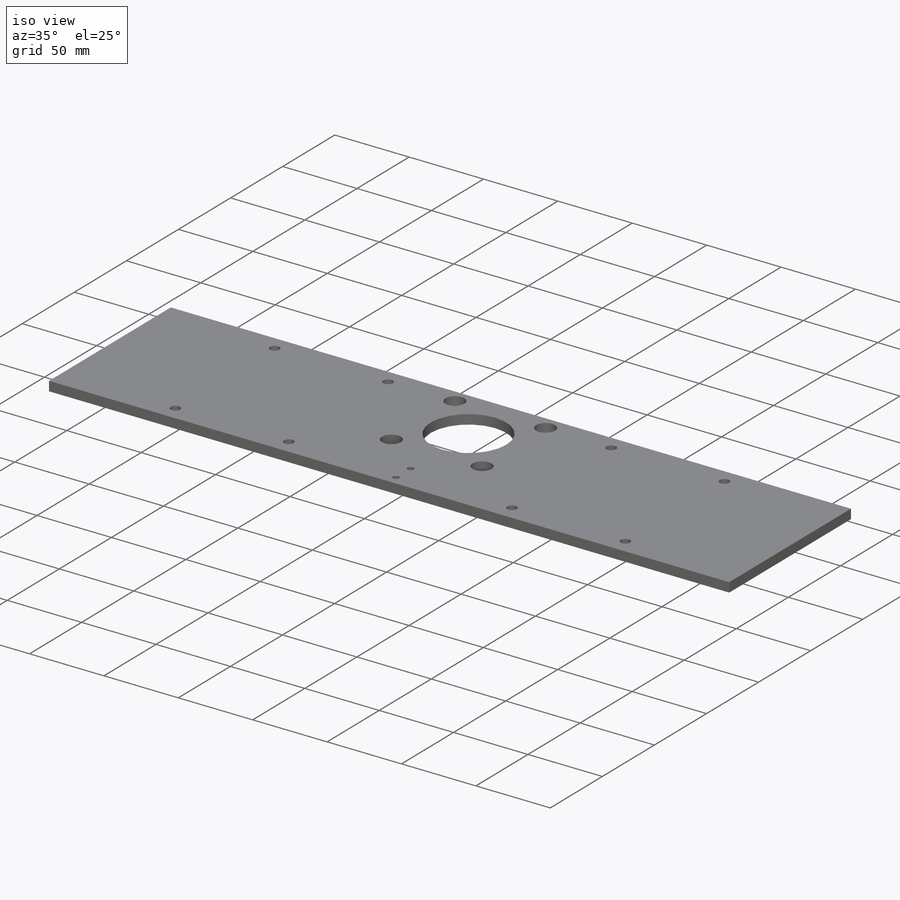
[diagram: iso view]
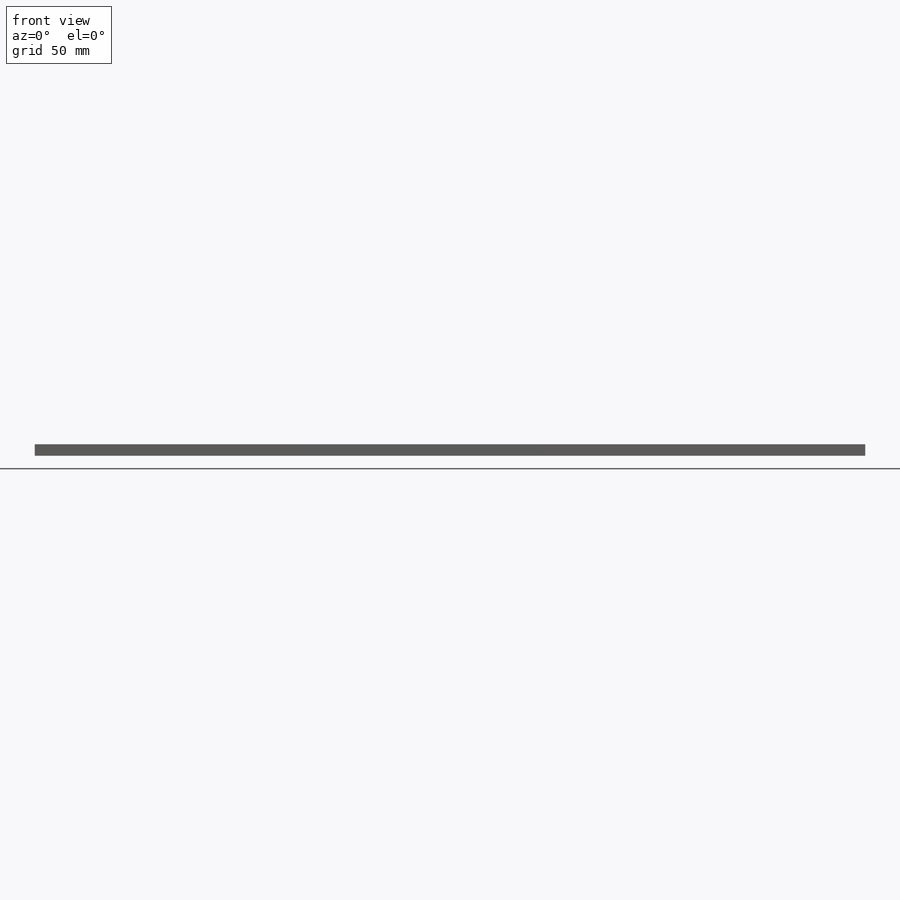
[diagram: front view]
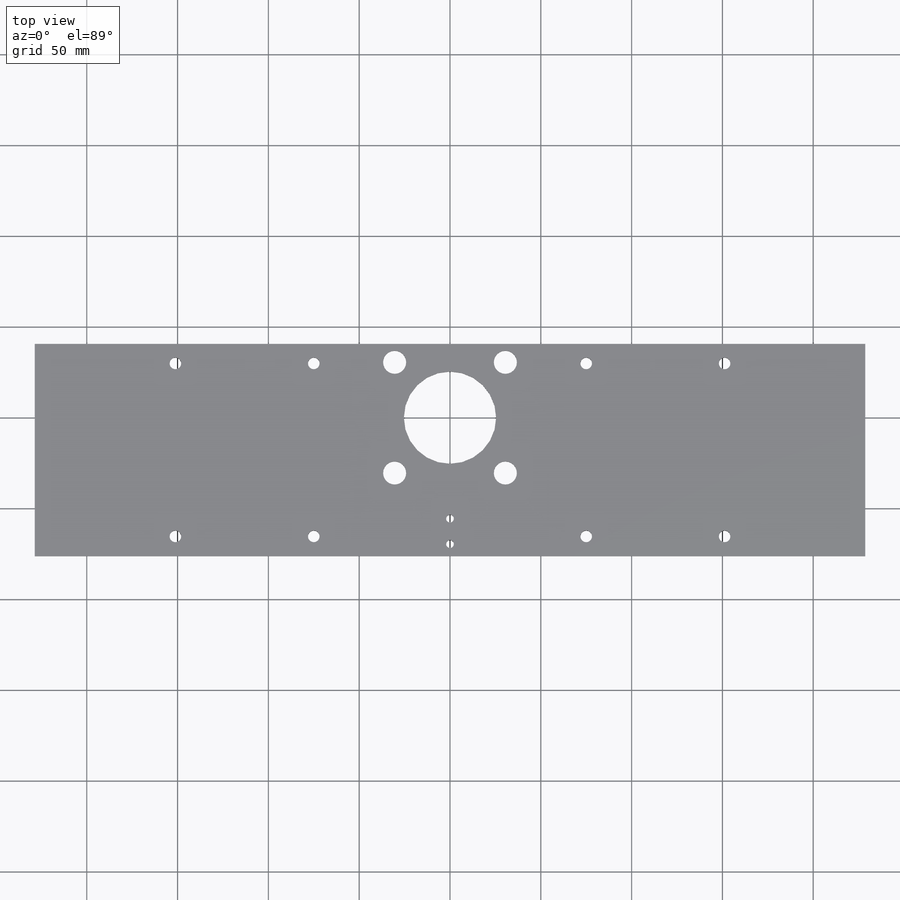
[diagram: top view]
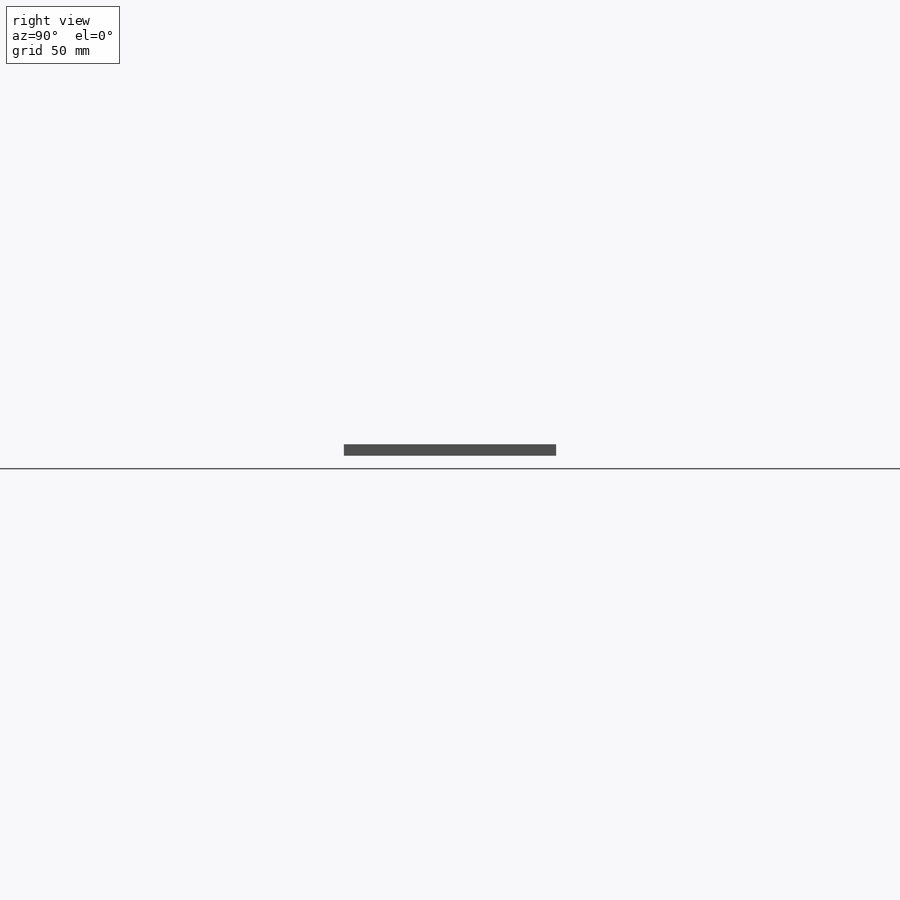
[diagram: right view]
SOLIDWORKS PART (.sldprt)
format: sldprt  version: not decoded by parser v0  size: 401,920 bytes
history: native  units: mm
features: sketch x10, hole x4, material x1, extrude x1, cut_extrude x1 (+13 scaffold rows collapsed)
feature tree (30):
  scaffold x13  (default folders/planes/origin — collapsed)
  material  "Material <not specified>"
  sketch  "Sketch1"  dims[c1.D1=~52.884132mm c1.D2=~178.879966mm c2.D1=80.0mm c2.D2=457.2mm c2.D3=~40.921659mm c2.D4=~105.069124mm c3.D3=80.0mm c3.D4=76.2mm c3.D5=32.5mm c3.D1=116.84mm]
  extrude  "Boss-Extrude1"  Depth=6.35mm
  hole  "1 (1) Diameter Hole1"  Diameter=50.8mm Depth=6.35mm
  sketch  "Sketch3"
  sketch  "Sketch2"  dims[hole-wizard template sketch: 59 standard entries collapsed; hole parameters kept: c18.Thru Hole Dia.=50.8mm c18.Thru Hole Depth=6.35mm]
  hole  "1/2 (0.5) Diameter Hole1"  Diameter=12.7mm Depth=6.35mm
  sketch  "Sketch5"  dims[c1.D1=~56.735466mm c1.D2=~70.457747mm c2.D1=60.96mm]
  sketch  "Sketch4"  dims[hole-wizard template sketch: 60 standard entries collapsed; hole parameters kept: c18.Thru Hole Depth=6.35mm]
  hole  "Ø4.0 (4) Diameter Hole1"  Diameter=4.2164mm Depth=6.35mm
  sketch  "Sketch7"  dims[D1=55.63mm D2=14.0mm]
  sketch  "Sketch6"  dims[hole-wizard template sketch: 59 standard entries collapsed; hole parameters kept: c18.Thru Hole Dia.=4.2164mm c18.Thru Hole Depth=6.35mm]
  hole  "1/4 (0.25) Diameter Hole1"  Diameter=6.35mm Depth=6.35mm
  sketch  "Sketch9"  dims[c1.D1=~51.238763mm c1.D2=~142.914296mm c2.D1=95.25mm c2.D2=150.0mm c2.D3=~237.328942mm]
  sketch  "Sketch8"  dims[hole-wizard template sketch: 60 standard entries collapsed; hole parameters kept: c18.Thru Hole Depth=6.35mm]
  sketch  "Sketch11"  dims[D2=6.35mm D3=5.461mm D1=76.2mm]
  cut_extrude  "Aux Clearance holes"  [1 undecoded]
decode coverage: 14 of 16 modeling features carry decoded parameters
note: ~ marks probable driven/reference dimensions
note: 1 parameter value undecoded
summary: Diameter pulled from absorbed wizard sketch
note: suppression state not decoded; provenance and decode notes live in map.json
